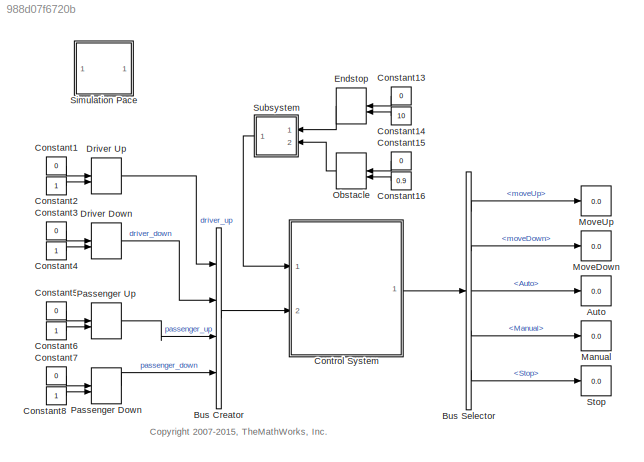
MODEL slx_988d07f6720b
KIND model
CONFIG AbsTol = auto
CONFIG EnableMultiTasking = on
CONFIG FixedStep = 0.1
CONFIG MaxStep = auto
CONFIG MinStep = auto
CONFIG PreLoadFcn = %addpath([matlabroot '/toolbox/stateflow/sfdemos']);\n%addpath([matlabroot '/toolbox/dsp/dsp']);\nload sf_power_window_buses;
CONFIG RelTol = 1e-3
CONFIG SampleTimeConstraint = Unconstrained
CONFIG Solver = FixedStepDiscrete
CONFIG SolverName = FixedStepDiscrete
CONFIG StartTime = 0.0
CONFIG StopTime = inf
BLOCK [Display] Auto
  Decimation = 1
  Ports = [1]
BLOCK [BusCreator] Bus Creator
  DisplayOption = bar
  InheritFromInputs = on
  Inputs = 4
  NonVirtualBus = on
  OutDataTypeStr = Bus: in_busobj
  Ports = [4, 1]
BLOCK [BusSelector] Bus Selector
  DialogController = Simulink.DDGSource_BusSelector
  OutputAsBus = off
  OutputSignals = moveUp,moveDown,Auto,Manual,Stop
  Ports = [1, 5]
BLOCK [Constant] Constant1
  OutDataTypeStr = boolean
  Value = 0
BLOCK [Constant] Constant13
  Value = 0
BLOCK [Constant] Constant14
  Value = 10
BLOCK [Constant] Constant15
  Value = 0
BLOCK [Constant] Constant16
  Value = 0.9
BLOCK [Constant] Constant2
  OutDataTypeStr = boolean
BLOCK [Constant] Constant3
  OutDataTypeStr = boolean
  Value = 0
BLOCK [Constant] Constant4
  OutDataTypeStr = boolean
BLOCK [Constant] Constant5
  OutDataTypeStr = boolean
  Value = 0
BLOCK [Constant] Constant6
  OutDataTypeStr = boolean
BLOCK [Constant] Constant7
  OutDataTypeStr = boolean
  Value = 0
BLOCK [Constant] Constant8
  OutDataTypeStr = boolean
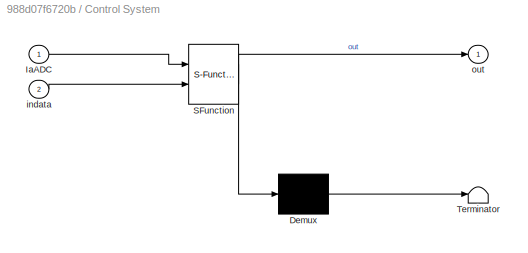
BLOCK [SubSystem] Control System
  ErrorFcn = Stateflow.Translate.translate
  PermitHierarchicalResolution = ExplicitOnly
  Ports = [2, 1]
  RequestExecContextInheritance = off
  SFBlockType = Chart
  TreatAsAtomicUnit = on
  Variant = off
BLOCK [Demux] Control System/ Demux 
  Outputs = 1
  Ports = [1, 1]
BLOCK [S-Function] Control System/ SFunction 
  EnableBusSupport = off
  FunctionName = sf_sfun
  PortCounts = [2 2]
  Ports = [2, 2]
  SFcnIsStateOwnerBlock = off
  SFunctionDeploymentMode = off
  Tag = Stateflow S-Function sf_power_window 3
BLOCK [Terminator] Control System/ Terminator 
BLOCK [Inport] Control System/IaADC
  IconDisplay = Port number
BLOCK [Inport] Control System/indata
  IconDisplay = Port number
  Port = 2
BLOCK [Outport] Control System/out
  IconDisplay = Port number
BLOCK [ManualSwitch] Driver Down
BLOCK [ManualSwitch] Driver Up
BLOCK [ManualSwitch] Endstop
BLOCK [Display] Manual
  Decimation = 1
  Ports = [1]
BLOCK [Display] MoveDown
  Decimation = 1
  Ports = [1]
BLOCK [Display] MoveUp
  Decimation = 1
  Ports = [1]
BLOCK [ManualSwitch] Obstacle
BLOCK [ManualSwitch] Passenger Down
BLOCK [ManualSwitch] Passenger Up
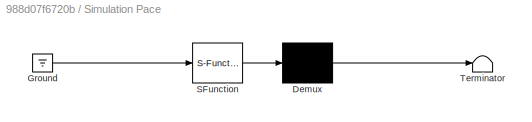
BLOCK [SubSystem] Simulation Pace
  ErrorFcn = Stateflow.Translate.translate
  PermitHierarchicalResolution = ExplicitOnly
  Ports = []
  RequestExecContextInheritance = off
  SFBlockType = MATLAB Function
  TreatAsAtomicUnit = on
  Variant = off
BLOCK [Demux] Simulation Pace/ Demux 
  Outputs = 1
  Ports = [1, 1]
BLOCK [Ground] Simulation Pace/ Ground 
BLOCK [S-Function] Simulation Pace/ SFunction 
  EnableBusSupport = off
  FunctionName = sf_sfun
  PortCounts = [1 1]
  Ports = [1, 1]
  SFcnIsStateOwnerBlock = off
  SFunctionDeploymentMode = off
  Tag = Stateflow S-Function sf_power_window 2
BLOCK [Terminator] Simulation Pace/ Terminator 
BLOCK [Display] Stop
  Decimation = 1
  Ports = [1]
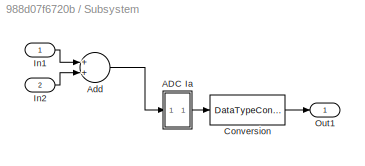
BLOCK [SubSystem] Subsystem
  Ports = [2, 1]
  RequestExecContextInheritance = off
  Variant = off
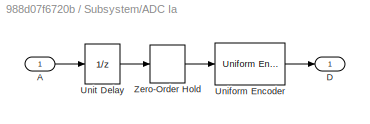
BLOCK [SubSystem] Subsystem/ADC Ia
  Ports = [1, 1]
  RequestExecContextInheritance = off
  Variant = off
BLOCK [Inport] Subsystem/ADC Ia/A
  IconDisplay = Port number
BLOCK [Outport] Subsystem/ADC Ia/D
  IconDisplay = Port number
BLOCK [Reference] Subsystem/ADC Ia/Uniform Encoder  REF=dspquant2/Uniform
Encoder
  Ports = [1, 1]
  SourceBlock = dspquant2/Uniform\nEncoder
  SourceProductBaseCode = DS
  SourceProductName = DSP System Toolbox
  SourceType = Uniform Encoder
BLOCK [UnitDelay] Subsystem/ADC Ia/Unit Delay
  SampleTime = 0.1
BLOCK [ZeroOrderHold] Subsystem/ADC Ia/Zero-Order Hold
  SampleTime = 0.1
BLOCK [Sum] Subsystem/Add
  InputSameDT = off
  OutDataTypeStr = Inherit: Inherit via internal rule
  Ports = [2, 1]
  SaturateOnIntegerOverflow = off
BLOCK [DataTypeConversion] Subsystem/Conversion
  ConvertRealWorld = Stored Integer (SI)
  RndMeth = Nearest
BLOCK [Inport] Subsystem/In1
  IconDisplay = Port number
BLOCK [Inport] Subsystem/In2
  IconDisplay = Port number
  Port = 2
BLOCK [Outport] Subsystem/Out1
  IconDisplay = Port number
ANNOTATION (root): <copyright redacted>
LINE Bus Creator:1 -> Control System:2
LINE Bus Selector:1 -> MoveUp:1
LINE Bus Selector:2 -> MoveDown:1
LINE Bus Selector:3 -> Auto:1
LINE Bus Selector:4 -> Manual:1
LINE Bus Selector:5 -> Stop:1
LINE Constant13:1 -> Endstop:1
LINE Constant14:1 -> Endstop:2
LINE Constant15:1 -> Obstacle:1
LINE Constant16:1 -> Obstacle:2
LINE Constant1:1 -> Driver Up:1
LINE Constant2:1 -> Driver Up:2
LINE Constant3:1 -> Driver Down:1
LINE Constant4:1 -> Driver Down:2
LINE Constant5:1 -> Passenger Up:1
LINE Constant6:1 -> Passenger Up:2
LINE Constant7:1 -> Passenger Down:1
LINE Constant8:1 -> Passenger Down:2
LINE Control System:1 -> Bus Selector:1
LINE Driver Down:1 -> Bus Creator:2
LINE Driver Up:1 -> Bus Creator:1
LINE Endstop:1 -> Subsystem:1
LINE Obstacle:1 -> Subsystem:2
LINE Passenger Down:1 -> Bus Creator:4
LINE Passenger Up:1 -> Bus Creator:3
LINE Subsystem/ADC Ia/A:1 -> Subsystem/ADC Ia/Unit Delay:1
LINE Subsystem/ADC Ia/Uniform Encoder:1 -> Subsystem/ADC Ia/D:1
LINE Subsystem/ADC Ia/Unit Delay:1 -> Subsystem/ADC Ia/Zero-Order Hold:1
LINE Subsystem/ADC Ia/Zero-Order Hold:1 -> Subsystem/ADC Ia/Uniform Encoder:1
LINE Subsystem/ADC Ia:1 -> Subsystem/Conversion:1
LINE Subsystem/Add:1 -> Subsystem/ADC Ia:1
LINE Subsystem/Conversion:1 -> Subsystem/Out1:1
LINE Subsystem/In1:1 -> Subsystem/Add:1
LINE Subsystem/In2:1 -> Subsystem/Add:2
LINE Subsystem:1 -> Control System:1
CHART Simulation Pace states=1 transitions=1
  STATE_LABEL 'eML_blk_kernel()'
  STATE_LABEL 'SCRIPT:\nfunction fcn()\npause(0.1);'
CHART Control System states=32 transitions=44
  STATE_LABEL 'Switch\ndu: switches();'
  STATE_LABEL 'switches'
  STATE_LABEL 'SCRIPT:\nfunction switches\n\naVarTruthTableCondition_1 = false;\naVarTruthTableCondition_2 = false;\naVarTruthTableCondition_3 = false;\naVarTruthTableCondition_4 = false;\n\n\n\naVarTruthTableCondition_1 = logical(indata.driver_up);\n\n\naVarTruthTableCondition_2 = logical(indata.driver_down);\n\n\naVarTruthTableCondition_3 = logical(indata.passenger_up);\n\n\naVarTruthTableCondition_4 = logical(indata.passenger_d...<+755ch>'
  STATE_LABEL 'switches'
  STATE_LABEL 'SCRIPT:\nfunction switches\n\naVarTruthTableCondition_1 = false;\naVarTruthTableCondition_2 = false;\naVarTruthTableCondition_3 = false;\naVarTruthTableCondition_4 = false;\n\n\n\naVarTruthTableCondition_1 = logical(indata.driver_up);\n\n\naVarTruthTableCondition_2 = logical(indata.driver_down);\n\n\naVarTruthTableCondition_3 = logical(indata.passenger_up);\n\n\naVarTruthTableCondition_4 = logical(indata.passenger_d...<+755ch>'
  STATE_LABEL 'Logic'
  STATE_LABEL 'Remain in Stop state until a NEUTRAL event triggers Stop.Mode to be Ready.\nFail safe time out after continuous movement of more than five seconds.'
  STATE_LABEL 'Stop \nen:go.neutral();\nen:out.Stop=true;\nex:out.Stop=false;'
  STATE_LABEL 'Mode'
  STATE_LABEL 'Waiting'
  STATE_LABEL 'Ready'
  STATE_LABEL 'NEUTRAL'
  STATE_LABEL 'Position'
  STATE_LABEL 'NotSureWhere'
  STATE_LABEL 'NearTop'
  STATE_LABEL 'NearBottom'
  STATE_LABEL '[in(EndStop.AtTop)]'
  STATE_LABEL 'go'
  STATE_LABEL 'up'
  STATE_LABEL '{out.moveDown = false;\n out.moveUp = true;}'
  STATE_LABEL 'neutral'
  STATE_LABEL '{out.moveUp = false;\n out.moveDown = false;}'
  STATE_LABEL 'down'
  STATE_LABEL '{out.moveUp = false;\n out.moveDown = true;}'
  STATE_LABEL 'EmergencyDown \nen: go.down();'
  STATE_LABEL 'Move\nen: obstacles.init();\ndu: obstacles.detect();'
  STATE_LABEL 'obstacles'
  STATE_LABEL 'detect'
  STATE_LABEL "{ newIa = cast(Ia*fi(0.96875,1,16,8) + IaADC*fi(0.03125,1,16,8), 'like', newIa);\n  dIa = newIa-Ia;\n  Ia = newIa;}"
  STATE_LABEL '[out.moveUp && Ia > 0.9]'
  STATE_LABEL '[(dIa >= 0.1)]  % top endstop'
  STATE_LABEL '{send(OBSTACLE,Move);}'
  STATE_LABEL '{send(ENDSTOP,Move);}'
  STATE_LABEL '[out.moveDown && (Ia < -2.0) && (dIa <= -0.1)]  % bottom endstop'
  STATE_LABEL '{send(ENDSTOP,Move);}'
  STATE_LABEL 'init'
  STATE_LABEL '{Ia=fi(0,1,16,8);}'
  STATE_LABEL 'Direction'
  STATE_LABEL 'Down \nen: go.down();'
  STATE_LABEL 'Error'
